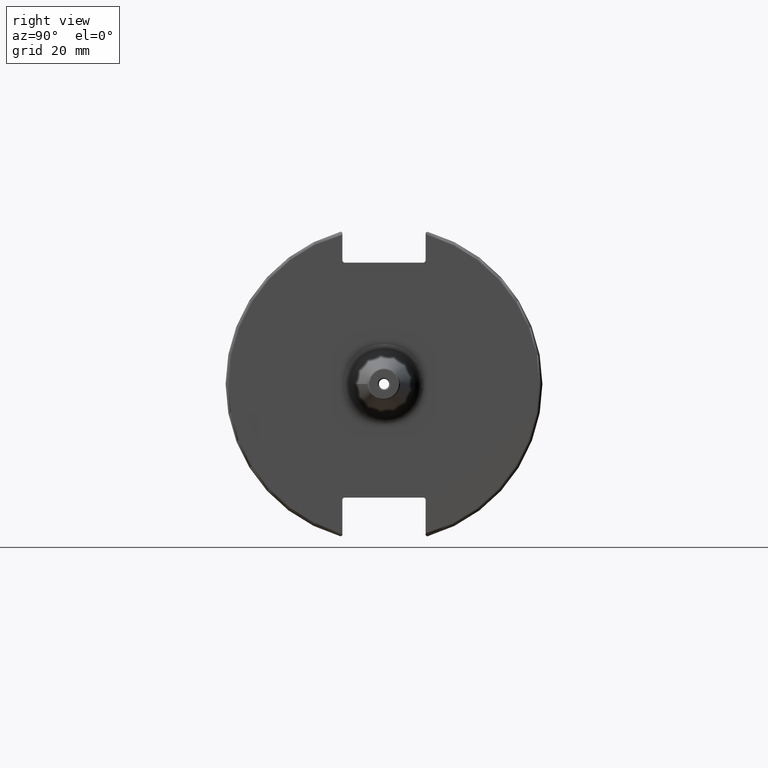
[diagram: clean part render]
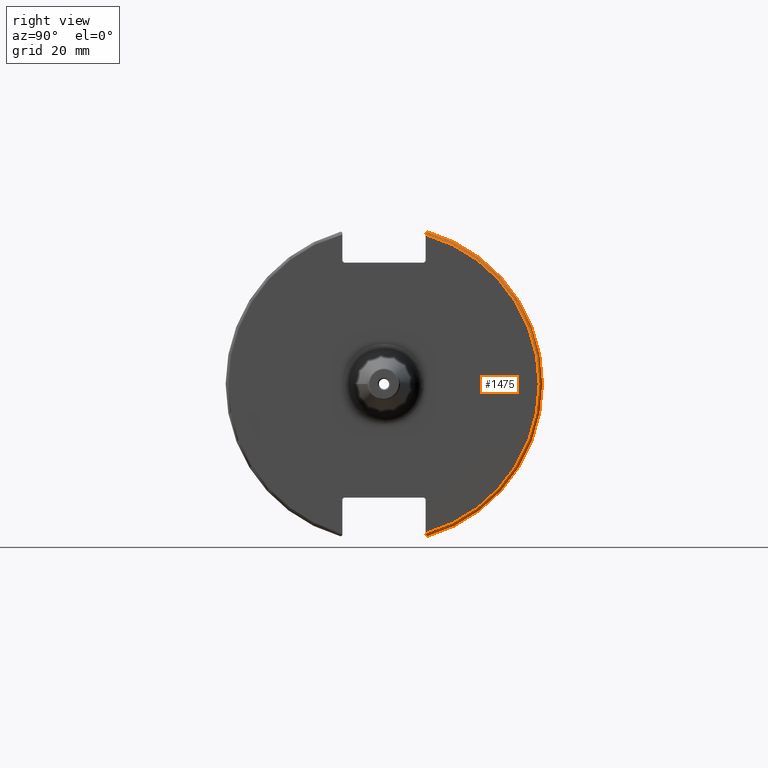
[diagram: same view with one face highlighted and labeled with its STEP entity id]
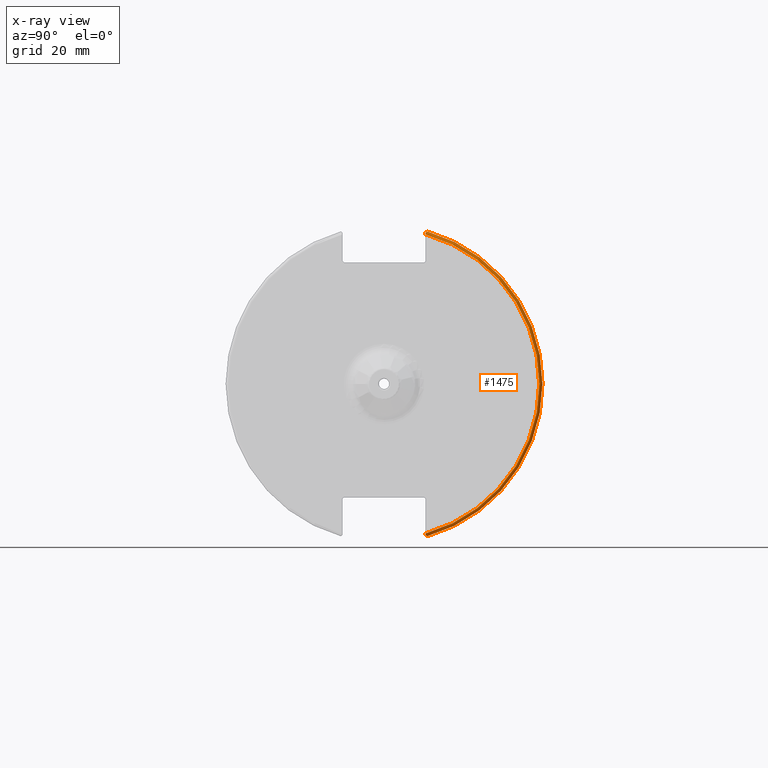
[diagram: x-ray of the same camera — body ghosted, the highlighted face saturated]
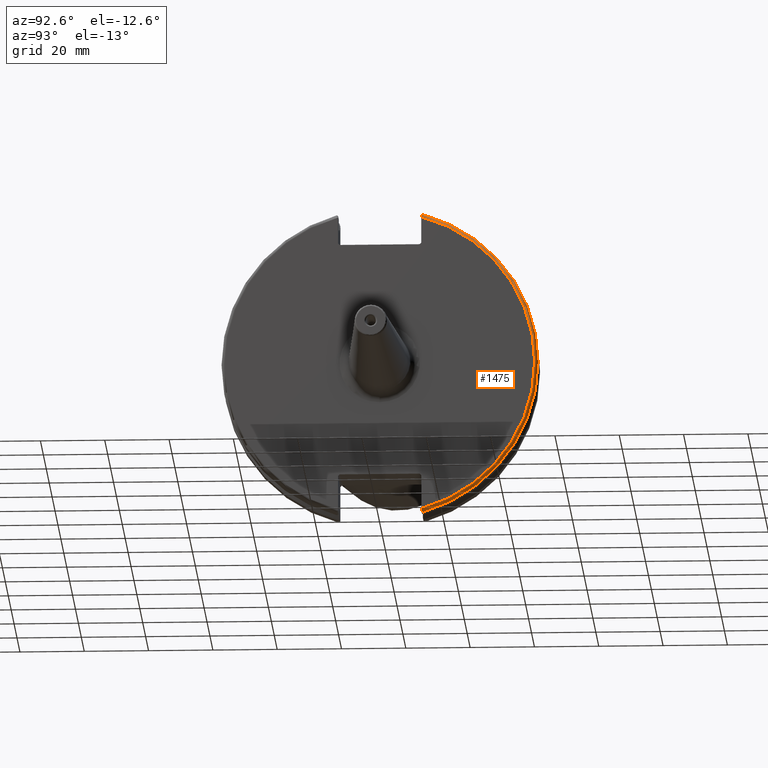
[diagram: same view with one face highlighted and labeled with its STEP entity id]
A machine part, right view. The second image highlights one B-rep face of the part: STEP entity #1475.
The next image is the same camera in x-ray: the body ghosted, the highlighted face saturated — about 0% of this face is hidden behind the body in this view.
A second angle (auxiliary view) of the same face is appended — the face is thin or edge-on in the first view.
In plain terms, the highlighted toroidal blend (fillet) surface has major radius 48.2125 mm and minor (blend) radius 1 mm.
Its self-contained STEP definition (entity closure, byte-faithful):
#58=B_SPLINE_CURVE_WITH_KNOTS('',3,(#2767,#2768,#2769,#2770,#2771,#2772),
 .UNSPECIFIED.,.F.,.F.,(4,2,4),(0.0976892167532868,0.112000071948293,0.150881870548587),
 .UNSPECIFIED.);
#59=B_SPLINE_CURVE_WITH_KNOTS('',3,(#2774,#2775,#2776,#2777,#2778,#2779),
 .UNSPECIFIED.,.F.,.F.,(4,2,4),(0.452859340315922,0.491741138916218,0.506051994111223),
 .UNSPECIFIED.);
#60=B_SPLINE_CURVE_WITH_KNOTS('',3,(#2781,#2782,#2783,#2784,#2785,#2786,
#2787,#2788),.UNSPECIFIED.,.F.,.F.,(4,2,2,4),(-0.104197480645881,-0.0778720357014994,
-0.0364336453281809,0.),.UNSPECIFIED.);
#61=B_SPLINE_CURVE_WITH_KNOTS('',3,(#2791,#2792,#2793,#2794,#2795,#2796,
#2797,#2798),.UNSPECIFIED.,.F.,.F.,(4,2,2,4),(0.,0.0364336453281816,0.0778720357014993,
0.104197480645882),.UNSPECIFIED.);
#392=FACE_OUTER_BOUND('',#491,.T.);
#491=EDGE_LOOP('',(#1206,#1207,#1208,#1209,#1210,#1211));
#552=CIRCLE('',#1564,48.2125);
#589=CIRCLE('',#1637,49.2125);
#623=VERTEX_POINT('',#2154);
#624=VERTEX_POINT('',#2155);
#719=VERTEX_POINT('',#2766);
#720=VERTEX_POINT('',#2773);
#721=VERTEX_POINT('',#2780);
#722=VERTEX_POINT('',#2789);
#777=EDGE_CURVE('',#623,#624,#552,.T.);
#899=EDGE_CURVE('',#719,#623,#58,.T.);
#900=EDGE_CURVE('',#624,#720,#59,.T.);
#901=EDGE_CURVE('',#720,#721,#60,.T.);
#902=EDGE_CURVE('',#721,#722,#589,.T.);
#903=EDGE_CURVE('',#722,#719,#61,.T.);
#1206=ORIENTED_EDGE('',*,*,#899,.T.);
#1207=ORIENTED_EDGE('',*,*,#777,.T.);
#1208=ORIENTED_EDGE('',*,*,#900,.T.);
#1209=ORIENTED_EDGE('',*,*,#901,.T.);
#1210=ORIENTED_EDGE('',*,*,#902,.T.);
#1211=ORIENTED_EDGE('',*,*,#903,.T.);
#1429=TOROIDAL_SURFACE('',#1636,48.2125,1.);
#1475=ADVANCED_FACE('',(#392),#1429,.T.);
#1564=AXIS2_PLACEMENT_3D('',#2156,#1752,#1753);
#1636=AXIS2_PLACEMENT_3D('',#2765,#1949,#1950);
#1637=AXIS2_PLACEMENT_3D('',#2790,#1951,#1952);
#1752=DIRECTION('center_axis',(-1.,0.,0.));
#1753=DIRECTION('ref_axis',(0.,1.,-6.12323399573677E-17));
#1949=DIRECTION('center_axis',(1.,0.,0.));
#1950=DIRECTION('ref_axis',(0.,0.,-1.));
#1951=DIRECTION('center_axis',(1.,0.,0.));
#1952=DIRECTION('ref_axis',(0.,1.,-6.12323399573677E-17));
#2154=CARTESIAN_POINT('',(19.05,12.95,46.4407434937254));
#2155=CARTESIAN_POINT('',(19.05,12.95,-46.4407434937254));
#2156=CARTESIAN_POINT('Origin',(19.05,0.,0.));
#2765=CARTESIAN_POINT('Origin',(18.05,0.,0.));
#2766=CARTESIAN_POINT('',(18.9055020570566,12.95,46.9780755322918));
#2767=CARTESIAN_POINT('Ctrl Pts',(18.9055020570566,12.95,46.9780755322918));
#2768=CARTESIAN_POINT('Ctrl Pts',(18.9315844351616,12.95,46.9333752207329));
#2769=CARTESIAN_POINT('Ctrl Pts',(18.9538432708766,12.95,46.887363294568));
#2770=CARTESIAN_POINT('Ctrl Pts',(19.0204646992875,12.95,46.7230464903732));
#2771=CARTESIAN_POINT('Ctrl Pts',(19.05,12.95,46.5703494890597));
#2772=CARTESIAN_POINT('Ctrl Pts',(19.05,12.95,46.4407434937254));
#2773=CARTESIAN_POINT('',(18.9055020570566,12.95,-46.9780755322918));
#2774=CARTESIAN_POINT('Ctrl Pts',(19.05,12.95,-46.4407434937254));
#2775=CARTESIAN_POINT('Ctrl Pts',(19.05,12.95,-46.5703494890597));
#2776=CARTESIAN_POINT('Ctrl Pts',(19.0204646992875,12.95,-46.7230464903732));
#2777=CARTESIAN_POINT('Ctrl Pts',(18.9538432708766,12.95,-46.887363294568));
#2778=CARTESIAN_POINT('Ctrl Pts',(18.9315844351616,12.95,-46.9333752207329));
#2779=CARTESIAN_POINT('Ctrl Pts',(18.9055020570566,12.95,-46.9780755322918));
#2780=CARTESIAN_POINT('',(18.05,13.4317035994433,-47.3440544806494));
#2781=CARTESIAN_POINT('Ctrl Pts',(18.9055020570566,12.95,-46.9780755322918));
#2782=CARTESIAN_POINT('Ctrl Pts',(18.8641312352177,13.0184763978125,-47.0301011349397));
#2783=CARTESIAN_POINT('Ctrl Pts',(18.811782280389,13.0847856162862,-47.0804802022157));
#2784=CARTESIAN_POINT('Ctrl Pts',(18.6710431007969,13.22546375702,-47.1873617743322));
#2785=CARTESIAN_POINT('Ctrl Pts',(18.54495745946,13.3111366376071,-47.2524525703658));
#2786=CARTESIAN_POINT('Ctrl Pts',(18.3128758164404,13.4037095171132,-47.3227857070234));
#2787=CARTESIAN_POINT('Ctrl Pts',(18.1714454844273,13.4317035994433,-47.3440544806494));
#2788=CARTESIAN_POINT('Ctrl Pts',(18.05,13.4317035994433,-47.3440544806494));
#2789=CARTESIAN_POINT('',(18.05,13.4317035994433,47.3440544806494));
#2790=CARTESIAN_POINT('Origin',(18.05,0.,0.));
#2791=CARTESIAN_POINT('Ctrl Pts',(18.05,13.4317035994433,47.3440544806494));
#2792=CARTESIAN_POINT('Ctrl Pts',(18.1714454844273,13.4317035994433,47.3440544806494));
#2793=CARTESIAN_POINT('Ctrl Pts',(18.3128758164404,13.4037095171132,47.3227857070234));
#2794=CARTESIAN_POINT('Ctrl Pts',(18.54495745946,13.3111366376071,47.2524525703658));
#2795=CARTESIAN_POINT('Ctrl Pts',(18.6710431007969,13.2254637570201,47.1873617743322));
#2796=CARTESIAN_POINT('Ctrl Pts',(18.811782280389,13.0847856162862,47.0804802022157));
#2797=CARTESIAN_POINT('Ctrl Pts',(18.8641312352177,13.0184763978125,47.0301011349397));
#2798=CARTESIAN_POINT('Ctrl Pts',(18.9055020570566,12.95,46.9780755322918));